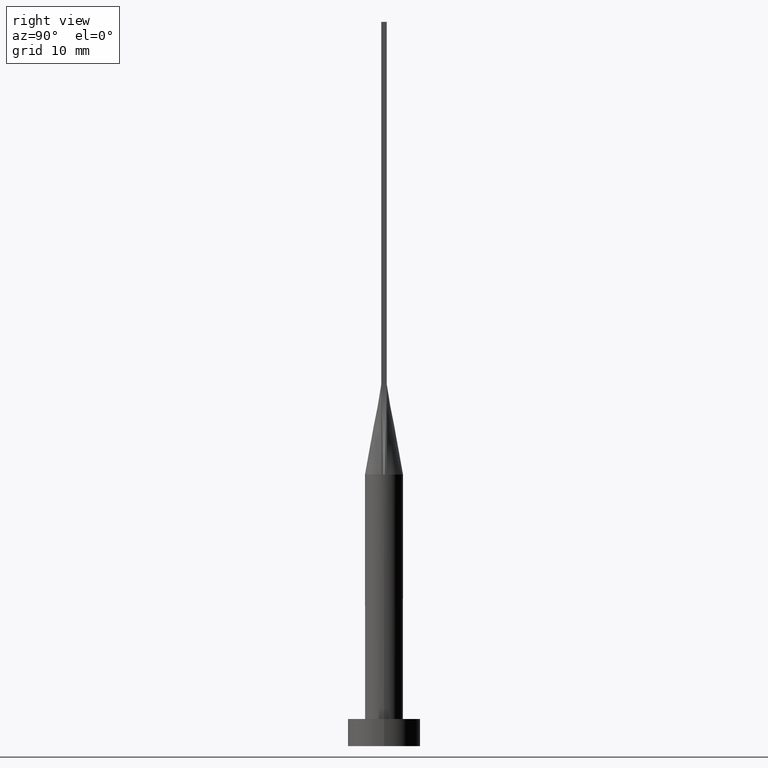
[diagram: clean part render]
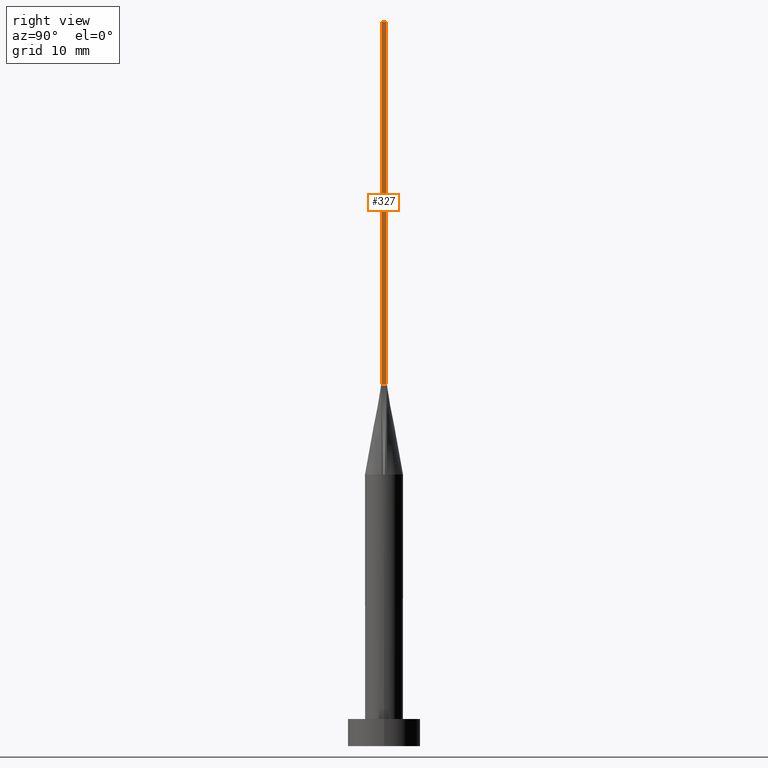
[diagram: same view with one face highlighted and labeled with its STEP entity id]
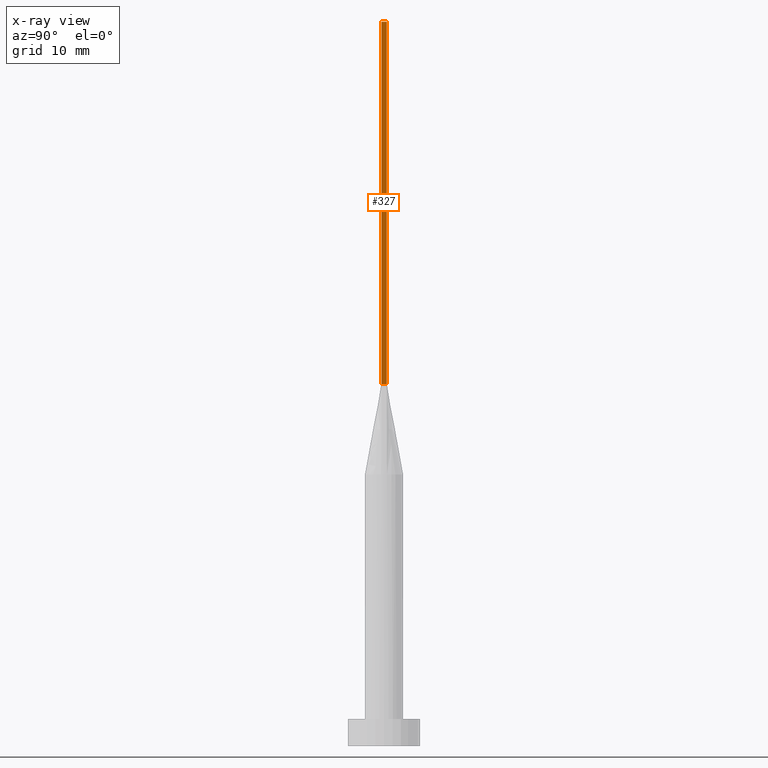
[diagram: x-ray of the same camera — body ghosted, the highlighted face saturated]
A machine part, right view. The second image highlights one B-rep face of the part: STEP entity #327.
The next image is the same camera in x-ray: the body ghosted, the highlighted face saturated — about 0% of this face is hidden behind the body in this view.
In plain terms, the highlighted planar face has unit normal (-1, 0, 0).
Its self-contained STEP definition (entity closure, byte-faithful):
#22 = LINE ( 'NONE', #206, #495 ) ;
#39 = DIRECTION ( 'NONE',  ( -0.000000000000000000, -0.000000000000000000, -1.000000000000000000 ) ) ;
#63 = EDGE_CURVE ( 'NONE', #450, #117, #448, .T. ) ;
#68 = CARTESIAN_POINT ( 'NONE',  ( 1.899999999999999023, -0.2999999999999997669, 80.00000000000000000 ) ) ;
#70 = DIRECTION ( 'NONE',  ( -0.000000000000000000, -0.000000000000000000, -1.000000000000000000 ) ) ;
#74 = CARTESIAN_POINT ( 'NONE',  ( 1.899999999999999689, 0.3000000000000002109, 80.00000000000000000 ) ) ;
#76 = EDGE_LOOP ( 'NONE', ( #505, #190, #165, #340 ) ) ;
#91 = CARTESIAN_POINT ( 'NONE',  ( 1.899999999999999023, -0.2999999999999997669, 80.00000000000000000 ) ) ;
#108 = LINE ( 'NONE', #74, #377 ) ;
#111 = DIRECTION ( 'NONE',  ( -1.000000000000000000, 1.084202172485504434E-15, 0.000000000000000000 ) ) ;
#117 = VERTEX_POINT ( 'NONE', #407 ) ;
#165 = ORIENTED_EDGE ( 'NONE', *, *, #293, .F. ) ;
#190 = ORIENTED_EDGE ( 'NONE', *, *, #267, .F. ) ;
#206 = CARTESIAN_POINT ( 'NONE',  ( 1.899999999999999689, 0.3000000000000002109, 40.00000000000000000 ) ) ;
#208 = DIRECTION ( 'NONE',  ( -3.614007241618348278E-16, 1.000000000000000000, -0.000000000000000000 ) ) ;
#250 = VERTEX_POINT ( 'NONE', #287 ) ;
#267 = EDGE_CURVE ( 'NONE', #480, #250, #108, .T. ) ;
#280 = DIRECTION ( 'NONE',  ( 1.084202172485504434E-15, 1.000000000000000000, 0.000000000000000000 ) ) ;
#287 = CARTESIAN_POINT ( 'NONE',  ( 1.899999999999999689, 0.3000000000000002109, 40.00000000000000000 ) ) ;
#289 = DIRECTION ( 'NONE',  ( -1.084202172485504434E-15, -1.000000000000000000, 0.000000000000000000 ) ) ;
#292 = LINE ( 'NONE', #68, #565 ) ;
#293 = EDGE_CURVE ( 'NONE', #450, #480, #292, .T. ) ;
#327 = ADVANCED_FACE ( 'NONE', ( #414 ), #333, .F. ) ;
#333 = PLANE ( 'NONE',  #451 ) ;
#340 = ORIENTED_EDGE ( 'NONE', *, *, #63, .T. ) ;
#366 = VECTOR ( 'NONE', #39, 1000.000000000000000 ) ;
#377 = VECTOR ( 'NONE', #70, 1000.000000000000000 ) ;
#407 = CARTESIAN_POINT ( 'NONE',  ( 1.899999999999999023, -0.2999999999999997669, 40.00000000000000000 ) ) ;
#414 = FACE_OUTER_BOUND ( 'NONE', #76, .T. ) ;
#415 = CARTESIAN_POINT ( 'NONE',  ( 1.899999999999999023, -0.2999999999999997669, 80.00000000000000000 ) ) ;
#448 = LINE ( 'NONE', #91, #366 ) ;
#450 = VERTEX_POINT ( 'NONE', #415 ) ;
#451 = AXIS2_PLACEMENT_3D ( 'NONE', #513, #111, #289 ) ;
#480 = VERTEX_POINT ( 'NONE', #508 ) ;
#495 = VECTOR ( 'NONE', #208, 1000.000000000000000 ) ;
#499 = EDGE_CURVE ( 'NONE', #117, #250, #22, .T. ) ;
#505 = ORIENTED_EDGE ( 'NONE', *, *, #499, .T. ) ;
#508 = CARTESIAN_POINT ( 'NONE',  ( 1.899999999999999689, 0.3000000000000002109, 80.00000000000000000 ) ) ;
#513 = CARTESIAN_POINT ( 'NONE',  ( 1.899999999999999023, -0.2999999999999997669, 80.00000000000000000 ) ) ;
#565 = VECTOR ( 'NONE', #280, 1000.000000000000000 ) ;